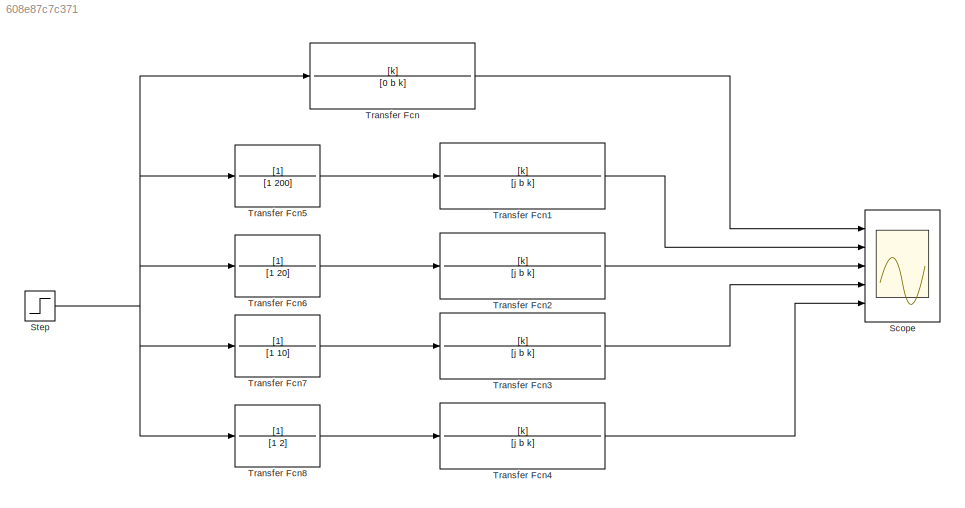
MODEL slx_608e87c7c371
KIND model
CONFIG AbsTol = auto
CONFIG EnableMultiTasking = off
CONFIG FixedStep = auto
CONFIG MaxStep = auto
CONFIG MinStep = auto
CONFIG RelTol = 1e-3
CONFIG SampleTimeConstraint = Unconstrained
CONFIG Solver = VariableStepAuto
CONFIG SolverName = VariableStepAuto
CONFIG StartTime = 0.0
CONFIG StopTime = 10.0
BLOCK [Scope] Scope
  Floating = off
  NumInputPorts = 5
  Ports = [5]
  ScopeSpecificationString = Simulink.scopes.TimeScopeBlockCfg('CurrentConfiguration', extmgr.ConfigurationSet(extmgr.Configuration('Core','General UI',true),extmgr.Configuration('Core','Source UI',true),extmgr.Configuration('Sources','WiredSimulink',true),extmgr.Configuration('Visuals','Time Domain',true,'SerializedDisplays',{struct('MinYLimReal','-10','MaxYLimReal','10','YLabelReal','','MinYLimMag','0','MaxYLimMag','10','Le...<+1383ch>
BLOCK [Step] Step
  SampleTime = 0
BLOCK [TransferFcn] Transfer Fcn
  Denominator = [0 b k]
  Numerator = [k]
BLOCK [TransferFcn] Transfer Fcn1
  Denominator = [j b k]
  Numerator = [k]
BLOCK [TransferFcn] Transfer Fcn2
  Denominator = [j b k]
  Numerator = [k]
BLOCK [TransferFcn] Transfer Fcn3
  Denominator = [j b k]
  Numerator = [k]
BLOCK [TransferFcn] Transfer Fcn4
  Denominator = [j b k]
  Numerator = [k]
BLOCK [TransferFcn] Transfer Fcn5
  Denominator = [1 200]
BLOCK [TransferFcn] Transfer Fcn6
  Denominator = [1 20]
BLOCK [TransferFcn] Transfer Fcn7
  Denominator = [1 10]
BLOCK [TransferFcn] Transfer Fcn8
  Denominator = [1 2]
NET Step:1 -> Transfer Fcn5:1, Transfer Fcn6:1, Transfer Fcn7:1, Transfer Fcn8:1, Transfer Fcn:1
LINE Transfer Fcn1:1 -> Scope:2
LINE Transfer Fcn2:1 -> Scope:3
LINE Transfer Fcn3:1 -> Scope:4
LINE Transfer Fcn4:1 -> Scope:5
LINE Transfer Fcn5:1 -> Transfer Fcn1:1
LINE Transfer Fcn6:1 -> Transfer Fcn2:1
LINE Transfer Fcn7:1 -> Transfer Fcn3:1
LINE Transfer Fcn8:1 -> Transfer Fcn4:1
LINE Transfer Fcn:1 -> Scope:1
note: NET lines group one-source signal fan-out (src -> all destinations, sorted); 1:1 wires keep LINE
